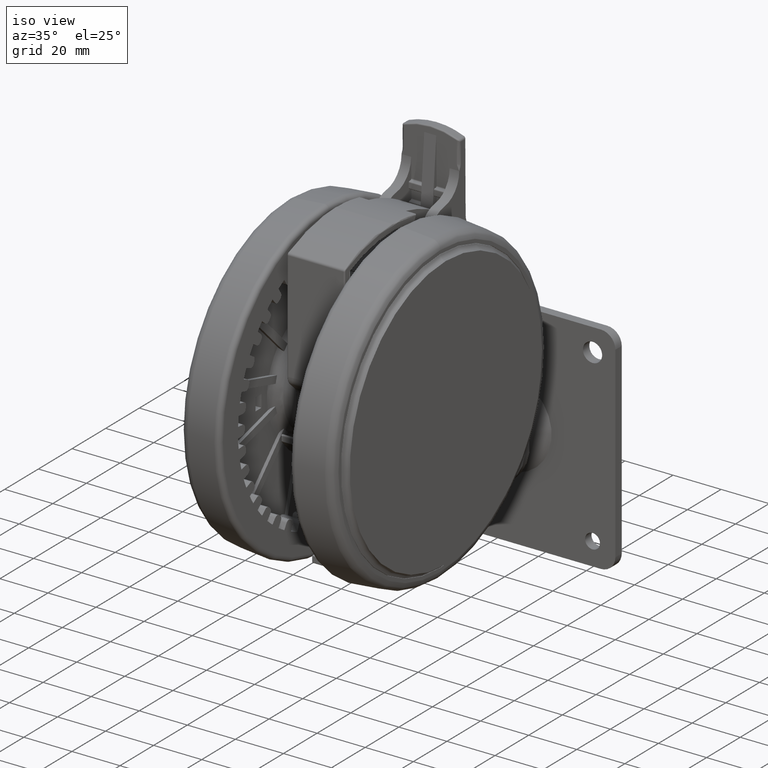
[diagram: clean part render]
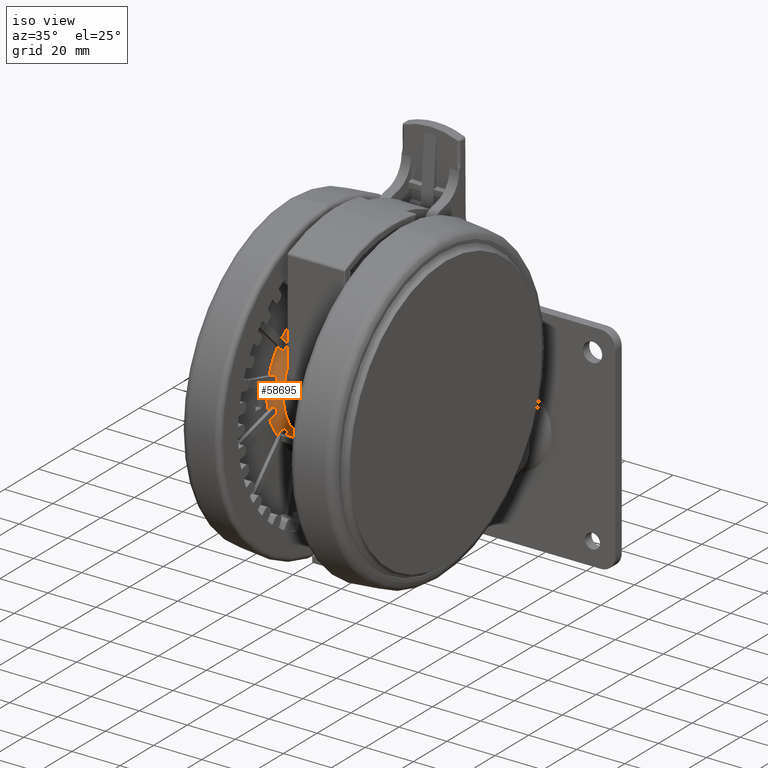
[diagram: same view with one face highlighted and labeled with its STEP entity id]
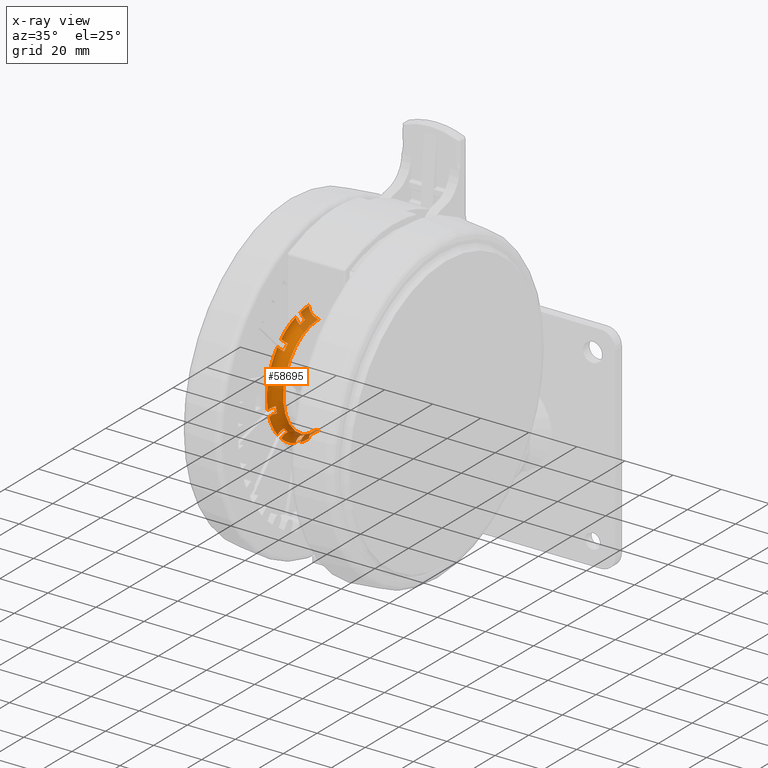
[diagram: x-ray of the same camera — body ghosted, the highlighted face saturated]
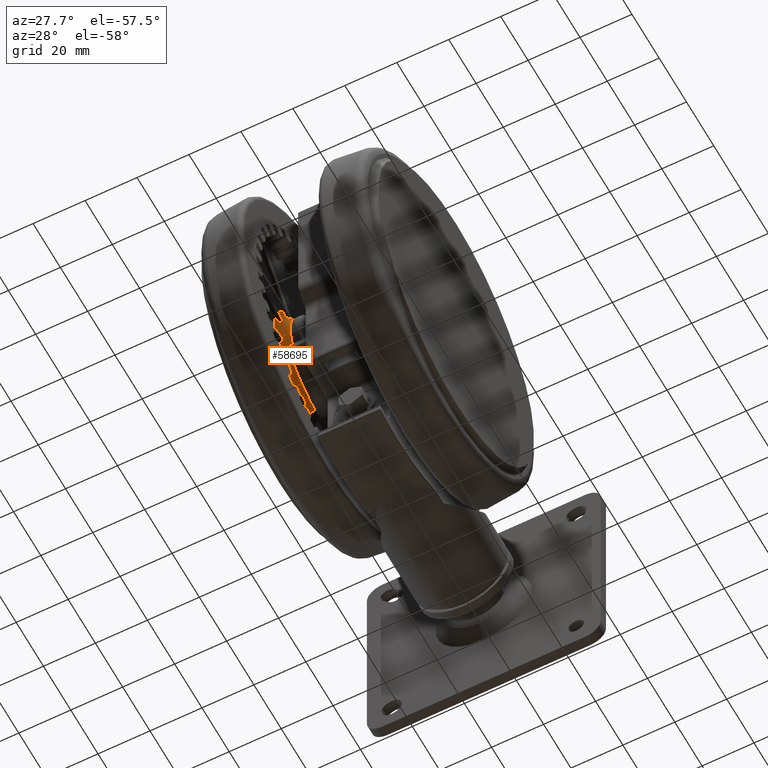
[diagram: same view with one face highlighted and labeled with its STEP entity id]
A machine part, iso view. The second image highlights one B-rep face of the part: STEP entity #58695.
The next image is the same camera in x-ray: the body ghosted, the highlighted face saturated — about 18% of this face is hidden behind the body in this view.
A second angle (auxiliary view) of the same face is appended — the face is thin or edge-on in the first view.
In plain terms, the highlighted toroidal blend (fillet) surface has major radius 25 mm and minor (blend) radius 4 mm.
Its self-contained STEP definition (entity closure, byte-faithful):
#120 = B_SPLINE_CURVE_WITH_KNOTS ( 'NONE', 3,
 ( #19770, #64383, #26182, #70812, #32577, #77153, #39038, #839, #45474, #7242 ),
 .UNSPECIFIED., .F., .F.,
 ( 4, 2, 2, 2, 4 ),
 ( 0.001348916626820415200, 0.002175007833610621100, 0.003001099040400826900, 0.003827190247191032700, 0.004653281453981238400 ),
 .UNSPECIFIED. ) ;
#839 = CARTESIAN_POINT ( 'NONE',  ( 21.24490781291777700, -7.247541083338640900, -55.99182023100745900 ) ) ;
#966 = CARTESIAN_POINT ( 'NONE',  ( 4.936599859708284300, -24.22692523311450700, -56.90000000000009800 ) ) ;
#1042 = VERTEX_POINT ( 'NONE', #54995 ) ;
#1113 = CIRCLE ( 'NONE', #30116, 22.04872908732524900 ) ;
#1247 = CARTESIAN_POINT ( 'NONE',  ( 4.655877800282382000, -23.17925624453165800, -56.67256205820938700 ) ) ;
#1765 = CIRCLE ( 'NONE', #31594, 25.00000000000000000 ) ;
#1800 = CARTESIAN_POINT ( 'NONE',  ( 23.96073927864555100, -4.869417390129179100, -56.87188789844324100 ) ) ;
#2449 = CARTESIAN_POINT ( 'NONE',  ( -24.49326988367322500, -5.007966693733918900, -56.90000000000011200 ) ) ;
#3255 = EDGE_CURVE ( 'NONE', #12454, #78558, #1113, .T. ) ;
#3767 = CARTESIAN_POINT ( 'NONE',  ( -2.775557561562891400E-014, 2.081668171172168500E-014, -56.90000000000011200 ) ) ;
#3981 = CARTESIAN_POINT ( 'NONE',  ( -18.51290027649737300, -16.38875100227156500, -56.90000000000009800 ) ) ;
#4242 = CARTESIAN_POINT ( 'NONE',  ( -16.89682505134646500, -14.77267577712067700, -55.98922615959220600 ) ) ;
#4774 = CARTESIAN_POINT ( 'NONE',  ( -21.24620652695218900, -7.243747230758085500, -55.99182301080955400 ) ) ;
#4777 = CARTESIAN_POINT ( 'NONE',  ( 14.77267577712074100, -16.89682505134636500, -55.98922615959219900 ) ) ;
#5187 = VERTEX_POINT ( 'NONE', #71492 ) ;
#5576 = CIRCLE ( 'NONE', #74271, 4.000000000000000000 ) ;
#6362 = CARTESIAN_POINT ( 'NONE',  ( 7.243747230758004600, -21.24620652695217500, -55.99182301080956100 ) ) ;
#6428 = CARTESIAN_POINT ( 'NONE',  ( 24.99999999999997500, 2.081668171172168500E-014, -52.90000000000010500 ) ) ;
#6575 = CARTESIAN_POINT ( 'NONE',  ( 18.70515170566867300, -16.58666029277502900, -56.90000000000011200 ) ) ;
#6668 = CARTESIAN_POINT ( 'NONE',  ( -16.61666317710112800, -14.49251390287534000, -55.60000000000010800 ) ) ;
#6714 = CIRCLE ( 'NONE', #29982, 22.04872908732524900 ) ;
#6741 = B_SPLINE_CURVE_WITH_KNOTS ( 'NONE', 3,
 ( #46405, #52804, #59191, #20969, #65588, #27345, #71985, #33791, #78353, #40259 ),
 .UNSPECIFIED., .F., .F.,
 ( 4, 2, 2, 2, 4 ),
 ( 0.001348916626820416200, 0.002175007833610625500, 0.003001099040400834300, 0.003827190247191043100, 0.004653281453981252300 ),
 .UNSPECIFIED. ) ;
#7242 = CARTESIAN_POINT ( 'NONE',  ( 20.85921679313977300, -7.144195486061188500, -55.60000000000010800 ) ) ;
#7652 = CARTESIAN_POINT ( 'NONE',  ( 4.461864923654134800, -22.45519033163242600, -56.31206506192830800 ) ) ;
#7784 = CARTESIAN_POINT ( 'NONE',  ( 14.49251390287539300, -16.61666317710102800, -55.60000000000010800 ) ) ;
#7941 = EDGE_CURVE ( 'NONE', #57607, #56604, #73717, .T. ) ;
#7951 = ORIENTED_EDGE ( 'NONE', *, *, #56331, .F. ) ;
#8196 = CARTESIAN_POINT ( 'NONE',  ( 23.17846471525370700, -4.659807552608926400, -56.67256163753975100 ) ) ;
#8836 = ORIENTED_EDGE ( 'NONE', *, *, #36639, .T. ) ;
#9319 = CARTESIAN_POINT ( 'NONE',  ( 21.63593743785232000, -4.246488614326249700, -55.60000000000010800 ) ) ;
#9424 = CIRCLE ( 'NONE', #66125, 25.00000000000000000 ) ;
#10099 = CARTESIAN_POINT ( 'NONE',  ( -15.81034896945307200, -17.92884038234655400, -56.75700211190937200 ) ) ;
#10175 = DIRECTION ( 'NONE',  ( 1.000000000000000000, 0.0000000000000000000, 0.0000000000000000000 ) ) ;
#10667 = CARTESIAN_POINT ( 'NONE',  ( -16.61666317710112800, -14.49251390287534000, -55.60000000000010800 ) ) ;
#10930 = CARTESIAN_POINT ( 'NONE',  ( -23.44723772250660300, -7.833511762122592300, -56.90000000000019000 ) ) ;
#10999 = DIRECTION ( 'NONE',  ( 1.224646799147353200E-016, 1.000000000000000000, -0.0000000000000000000 ) ) ;
#11064 = CARTESIAN_POINT ( 'NONE',  ( -24.49326988367322500, -5.007966693733918900, -56.90000000000011200 ) ) ;
#11200 = CARTESIAN_POINT ( 'NONE',  ( -20.86051576303413000, -7.140401702038098500, -55.60000000000010800 ) ) ;
#11203 = CARTESIAN_POINT ( 'NONE',  ( 14.49251390287539300, -16.61666317710102800, -55.60000000000010800 ) ) ;
#11296 = CARTESIAN_POINT ( 'NONE',  ( 20.85921679313977300, -7.144195486061188500, -55.60000000000010800 ) ) ;
#11363 = AXIS2_PLACEMENT_3D ( 'NONE', #75260, #37136, #81674 ) ;
#11452 = DIRECTION ( 'NONE',  ( -0.0000000000000000000, -0.0000000000000000000, 1.000000000000000000 ) ) ;
#11683 = CARTESIAN_POINT ( 'NONE',  ( -5.011893324651548000, -24.49246670513838000, -56.90000000000011200 ) ) ;
#11851 = DIRECTION ( 'NONE',  ( 1.000000000000000000, 0.0000000000000000000, 0.0000000000000000000 ) ) ;
#12347 = CARTESIAN_POINT ( 'NONE',  ( 5.007966693733831900, -24.49326988367317900, -56.90000000000011200 ) ) ;
#12454 = VERTEX_POINT ( 'NONE', #20389 ) ;
#12464 = CARTESIAN_POINT ( 'NONE',  ( -2.775557561562891400E-014, 2.081668171172168500E-014, -52.90000000000010500 ) ) ;
#12686 = VERTEX_POINT ( 'NONE', #36818 ) ;
#12769 = CARTESIAN_POINT ( 'NONE',  ( 7.140401702038022200, -20.86051576303413000, -55.60000000000010800 ) ) ;
#12816 = DIRECTION ( 'NONE',  ( 0.0000000000000000000, 0.0000000000000000000, -1.000000000000000000 ) ) ;
#13995 = B_SPLINE_CURVE_WITH_KNOTS ( 'NONE', 3,
 ( #2449, #47055, #53452, #15234, #59867, #21643, #66250, #28006, #72624, #34462 ),
 .UNSPECIFIED., .F., .F.,
 ( 4, 2, 2, 2, 4 ),
 ( 0.0005231479266617440400, 0.001349784870189810100, 0.002176421813717876100, 0.003003058757245942500, 0.003829695700774008400 ),
 .UNSPECIFIED. ) ;
#14046 = CARTESIAN_POINT ( 'NONE',  ( 4.291447536817257100, -21.81918398546406800, -55.80601266069986400 ) ) ;
#14058 = CARTESIAN_POINT ( 'NONE',  ( -21.63670938893672600, -4.242553616038633500, -55.60000000000010800 ) ) ;
#14594 = CARTESIAN_POINT ( 'NONE',  ( 22.45439583371094700, -4.465793880535041000, -56.31205643981766700 ) ) ;
#15234 = CARTESIAN_POINT ( 'NONE',  ( -23.43311941485360000, -4.723900231758232600, -56.75716834254034600 ) ) ;
#15387 = EDGE_CURVE ( 'NONE', #5187, #55820, #32400, .T. ) ;
#15594 = CARTESIAN_POINT ( 'NONE',  ( -18.70781059414232700, -16.58366131991653000, -56.90000000000011200 ) ) ;
#16502 = CARTESIAN_POINT ( 'NONE',  ( -15.26706642823438800, -17.38555784112787000, -56.45060962189929700 ) ) ;
#17331 = CARTESIAN_POINT ( 'NONE',  ( 16.38875100227165400, -18.51290027649727000, -56.90000000000009800 ) ) ;
#17598 = VERTEX_POINT ( 'NONE', #79450 ) ;
#17623 = CARTESIAN_POINT ( 'NONE',  ( 18.31427174262375200, -16.19578032973008800, -56.87149998141190100 ) ) ;
#18105 = CARTESIAN_POINT ( 'NONE',  ( -4.940527544913138900, -24.22612598923285500, -56.90000000000012600 ) ) ;
#18342 = VERTEX_POINT ( 'NONE', #11064 ) ;
#18633 = AXIS2_PLACEMENT_3D ( 'NONE', #27091, #71706, #33507 ) ;
#18727 = ORIENTED_EDGE ( 'NONE', *, *, #44095, .F. ) ;
#19076 = DIRECTION ( 'NONE',  ( -0.0000000000000000000, -0.0000000000000000000, -1.000000000000000000 ) ) ;
#19229 = EDGE_CURVE ( 'NONE', #47047, #35057, #32655, .T. ) ;
#19635 = VERTEX_POINT ( 'NONE', #15594 ) ;
#19770 = CARTESIAN_POINT ( 'NONE',  ( 23.71577728787627100, -7.909608563756479200, -56.90000000000011200 ) ) ;
#20133 = ORIENTED_EDGE ( 'NONE', *, *, #81473, .F. ) ;
#20163 = CARTESIAN_POINT ( 'NONE',  ( -2.775557561562891400E-014, 2.081668171172168500E-014, -56.90000000000011200 ) ) ;
#20264 = EDGE_CURVE ( 'NONE', #44571, #40661, #5576, .T. ) ;
#20389 = CARTESIAN_POINT ( 'NONE',  ( -7.144195486061307500, -20.85921679313978000, -55.60000000000010800 ) ) ;
#20460 = DIRECTION ( 'NONE',  ( -0.0000000000000000000, -0.0000000000000000000, 1.000000000000000000 ) ) ;
#20623 = AXIS2_PLACEMENT_3D ( 'NONE', #22348, #66960, #28706 ) ;
#20724 = CARTESIAN_POINT ( 'NONE',  ( 24.49246670513841900, -5.011893324651419200, -56.90000000000011200 ) ) ;
#20743 = CARTESIAN_POINT ( 'NONE',  ( -2.775557561562891400E-014, 2.081668171172168500E-014, -55.60000000000010800 ) ) ;
#20939 = DIRECTION ( 'NONE',  ( 0.0000000000000000000, 0.0000000000000000000, 1.000000000000000000 ) ) ;
#20969 = CARTESIAN_POINT ( 'NONE',  ( -7.626680945777248000, -22.65987704271283900, -56.75813185887105300 ) ) ;
#20996 = CARTESIAN_POINT ( 'NONE',  ( 21.81840954015164200, -4.295381866778564400, -55.80601239959037200 ) ) ;
#21320 = EDGE_CURVE ( 'NONE', #35420, #17598, #52316, .T. ) ;
#21643 = CARTESIAN_POINT ( 'NONE',  ( -22.69143043367994700, -4.525165268217691100, -56.45100011469186500 ) ) ;
#22348 = CARTESIAN_POINT ( 'NONE',  ( -2.775557561562891400E-014, 2.081668171172168500E-014, -56.90000000000011200 ) ) ;
#22901 = CARTESIAN_POINT ( 'NONE',  ( -14.77569341390269700, -16.89418482679617700, -55.98922522866440200 ) ) ;
#23731 = CARTESIAN_POINT ( 'NONE',  ( -23.71704503032022900, -7.905806412363269900, -56.90000000000011200 ) ) ;
#24037 = CARTESIAN_POINT ( 'NONE',  ( 17.74316704099160400, -15.62467562809794000, -56.67255586881644500 ) ) ;
#24156 = EDGE_CURVE ( 'NONE', #57607, #39281, #77859, .T. ) ;
#24373 = CIRCLE ( 'NONE', #30399, 21.00000000000000000 ) ;
#24526 = CARTESIAN_POINT ( 'NONE',  ( -4.727828586080774700, -23.43232266815347100, -56.75716642179951100 ) ) ;
#24999 = CARTESIAN_POINT ( 'NONE',  ( 7.905806412363173100, -23.71704503032022900, -56.90000000000011200 ) ) ;
#25313 = CARTESIAN_POINT ( 'NONE',  ( 7.762487319494344000, -23.18217089403904300, -56.87116406797142100 ) ) ;
#25604 = B_SPLINE_CURVE_WITH_KNOTS ( 'NONE', 3,
 ( #23731, #10930, #30112, #74696, #36551, #81109, #42998, #4774, #49426, #11200 ),
 .UNSPECIFIED., .F., .F.,
 ( 4, 2, 2, 2, 4 ),
 ( 0.001347546084473213400, 0.002173628119568467500, 0.002999710154663721100, 0.003825792189758975200, 0.004651874224854229300 ),
 .UNSPECIFIED. ) ;
#25893 = CARTESIAN_POINT ( 'NONE',  ( 4.242553616038552600, -21.63670938893668000, -55.60000000000010800 ) ) ;
#26182 = CARTESIAN_POINT ( 'NONE',  ( 23.18091811138896600, -7.766293479352327700, -56.87116724136443200 ) ) ;
#26234 = ORIENTED_EDGE ( 'NONE', *, *, #44849, .T. ) ;
#26559 = DIRECTION ( 'NONE',  ( 1.000000000000000000, 0.0000000000000000000, 0.0000000000000000000 ) ) ;
#27091 = CARTESIAN_POINT ( 'NONE',  ( -2.775557561562891400E-014, 2.081668171172168500E-014, -55.60000000000010800 ) ) ;
#27126 = DIRECTION ( 'NONE',  ( -1.000000000000000000, 0.0000000000000000000, 0.0000000000000000000 ) ) ;
#27345 = CARTESIAN_POINT ( 'NONE',  ( -7.426274505814486600, -21.91195002660781200, -56.44998293941953400 ) ) ;
#27491 = EDGE_CURVE ( 'NONE', #56976, #12454, #6741, .T. ) ;
#27883 = AXIS2_PLACEMENT_3D ( 'NONE', #6428, #51067, #12816 ) ;
#28006 = CARTESIAN_POINT ( 'NONE',  ( -22.01955541522622200, -4.345136899608372800, -55.98940024324907200 ) ) ;
#28009 = DIRECTION ( 'NONE',  ( -0.0000000000000000000, -0.0000000000000000000, -1.000000000000000000 ) ) ;
#28270 = ORIENTED_EDGE ( 'NONE', *, *, #35949, .F. ) ;
#28508 = CARTESIAN_POINT ( 'NONE',  ( -2.775557561562891400E-014, 2.081668171172168500E-014, -56.90000000000011200 ) ) ;
#28706 = DIRECTION ( 'NONE',  ( 1.000000000000000000, 0.0000000000000000000, 0.0000000000000000000 ) ) ;
#28922 = AXIS2_PLACEMENT_3D ( 'NONE', #20163, #64770, #26559 ) ;
#28996 = CARTESIAN_POINT ( 'NONE',  ( -16.39175167238482100, -18.51024308527830800, -56.90000000000009800 ) ) ;
#29269 = CARTESIAN_POINT ( 'NONE',  ( -14.49553573581420800, -16.61402714870773100, -55.60000000000010800 ) ) ;
#29569 = CARTESIAN_POINT ( 'NONE',  ( -18.31692739584990200, -16.19277812162410500, -56.87150008029321700 ) ) ;
#29982 = AXIS2_PLACEMENT_3D ( 'NONE', #20743, #65350, #27126 ) ;
#30016 = ORIENTED_EDGE ( 'NONE', *, *, #21320, .F. ) ;
#30112 = CARTESIAN_POINT ( 'NONE',  ( -23.18217089403904300, -7.762487319494431900, -56.87116406797142100 ) ) ;
#30116 = AXIS2_PLACEMENT_3D ( 'NONE', #58645, #20460, #65055 ) ;
#30118 = CARTESIAN_POINT ( 'NONE',  ( 16.19277812162419400, -18.31692739584980600, -56.87150008029324500 ) ) ;
#30140 = CARTESIAN_POINT ( 'NONE',  ( 18.51024308527837500, -16.39175167238470400, -56.90000000000010500 ) ) ;
#30354 = CARTESIAN_POINT ( 'NONE',  ( -2.775557561562891400E-014, 2.081668171172168500E-014, -55.60000000000010800 ) ) ;
#30395 = VERTEX_POINT ( 'NONE', #14058 ) ;
#30399 = AXIS2_PLACEMENT_3D ( 'NONE', #59148, #20939, #65547 ) ;
#30420 = CARTESIAN_POINT ( 'NONE',  ( 17.21231410289082200, -15.09382268999715700, -56.31125119007644700 ) ) ;
#30658 = B_SPLINE_CURVE_WITH_KNOTS ( 'NONE', 3,
 ( #20724, #33527, #1800, #46436, #8196, #52827, #14594, #59208, #20996, #65604 ),
 .UNSPECIFIED., .F., .F.,
 ( 4, 2, 2, 2, 4 ),
 ( 0.0005239861712278758900, 0.001350617455153506200, 0.002177248739079136600, 0.003003880023004766900, 0.003830511306930397300 ),
 .UNSPECIFIED. ) ;
#30885 = CARTESIAN_POINT ( 'NONE',  ( -4.529095117299738700, -22.69063926549825200, -56.45099670177592800 ) ) ;
#30897 = ORIENTED_EDGE ( 'NONE', *, *, #81249, .F. ) ;
#31323 = ORIENTED_EDGE ( 'NONE', *, *, #60585, .T. ) ;
#31351 = B_SPLINE_CURVE_WITH_KNOTS ( 'NONE', 3,
 ( #61934, #17331, #30118, #74699, #36556, #81114, #43005, #4777, #49432, #11203 ),
 .UNSPECIFIED., .F., .F.,
 ( 4, 2, 2, 2, 4 ),
 ( 0.003307883883644838000, 0.004134723832034096000, 0.004961563780423354000, 0.005788403728812614600, 0.006615243677201876000 ),
 .UNSPECIFIED. ) ;
#31358 = DIRECTION ( 'NONE',  ( -0.0000000000000000000, -0.0000000000000000000, -1.000000000000000000 ) ) ;
#31594 = AXIS2_PLACEMENT_3D ( 'NONE', #69608, #31358, #75922 ) ;
#31709 = CARTESIAN_POINT ( 'NONE',  ( 7.905806412363173100, -23.71704503032022900, -56.90000000000011200 ) ) ;
#32022 = EDGE_CURVE ( 'NONE', #19635, #34626, #48424, .T. ) ;
#32400 = CIRCLE ( 'NONE', #78151, 25.00000000000000000 ) ;
#32577 = CARTESIAN_POINT ( 'NONE',  ( 22.40107036529797900, -7.557333905568020400, -56.67236090217881600 ) ) ;
#32624 = ORIENTED_EDGE ( 'NONE', *, *, #38943, .F. ) ;
#32655 = CIRCLE ( 'NONE', #53929, 22.04872908732524900 ) ;
#33507 = DIRECTION ( 'NONE',  ( -1.000000000000000000, 0.0000000000000000000, 0.0000000000000000000 ) ) ;
#33527 = CARTESIAN_POINT ( 'NONE',  ( 24.22612598923289800, -4.940527544913012800, -56.90000000000010500 ) ) ;
#33791 = CARTESIAN_POINT ( 'NONE',  ( -7.247541083338772300, -21.24490781291776600, -55.99182023100748000 ) ) ;
#33834 = ORIENTED_EDGE ( 'NONE', *, *, #3255, .T. ) ;
#34462 = CARTESIAN_POINT ( 'NONE',  ( -21.63670938893672600, -4.242553616038633500, -55.60000000000010800 ) ) ;
#34626 = VERTEX_POINT ( 'NONE', #54436 ) ;
#34964 = EDGE_CURVE ( 'NONE', #5187, #79007, #120, .T. ) ;
#34973 = DIRECTION ( 'NONE',  ( 1.000000000000000000, 0.0000000000000000000, 0.0000000000000000000 ) ) ;
#35057 = VERTEX_POINT ( 'NONE', #39873 ) ;
#35420 = VERTEX_POINT ( 'NONE', #39241 ) ;
#35945 = ORIENTED_EDGE ( 'NONE', *, *, #69180, .T. ) ;
#35949 = EDGE_CURVE ( 'NONE', #17598, #78511, #73275, .T. ) ;
#36011 = CARTESIAN_POINT ( 'NONE',  ( -17.74581723084492800, -15.62166795661912400, -56.67255639888745100 ) ) ;
#36551 = CARTESIAN_POINT ( 'NONE',  ( -22.40234830381208700, -7.553534486203577800, -56.67236030751059400 ) ) ;
#36556 = CARTESIAN_POINT ( 'NONE',  ( 15.62166795661919700, -17.74581723084482100, -56.67255639888743700 ) ) ;
#36639 = EDGE_CURVE ( 'NONE', #30395, #44985, #41478, .T. ) ;
#36720 = CARTESIAN_POINT ( 'NONE',  ( 7.833511762122505200, -23.44723772250659300, -56.90000000000019000 ) ) ;
#36790 = DIRECTION ( 'NONE',  ( -1.000000000000000000, -8.881784197001252300E-015, 0.0000000000000000000 ) ) ;
#36818 = CARTESIAN_POINT ( 'NONE',  ( -16.58666029277512500, -18.70515170566862700, -56.90000000000011200 ) ) ;
#36868 = CARTESIAN_POINT ( 'NONE',  ( 16.74763722004176400, -14.62914580714809900, -55.80606055102646900 ) ) ;
#37136 = DIRECTION ( 'NONE',  ( -0.0000000000000000000, -0.0000000000000000000, 1.000000000000000000 ) ) ;
#37168 = ORIENTED_EDGE ( 'NONE', *, *, #79572, .T. ) ;
#37358 = CARTESIAN_POINT ( 'NONE',  ( -4.349069996922115600, -22.01877636961025800, -55.98939764193031000 ) ) ;
#38169 = CARTESIAN_POINT ( 'NONE',  ( 7.553534486203491700, -22.40234830381208300, -56.67236030751060100 ) ) ;
#38943 = EDGE_CURVE ( 'NONE', #42777, #70639, #70656, .T. ) ;
#39038 = CARTESIAN_POINT ( 'NONE',  ( 21.68067539087941900, -7.364304653941130300, -56.31395356812575400 ) ) ;
#39103 = ORIENTED_EDGE ( 'NONE', *, *, #20264, .T. ) ;
#39241 = CARTESIAN_POINT ( 'NONE',  ( 20.99999999999997500, 2.081668171172168500E-014, -52.90000000000010500 ) ) ;
#39281 = VERTEX_POINT ( 'NONE', #71883 ) ;
#39437 = ORIENTED_EDGE ( 'NONE', *, *, #78459, .T. ) ;
#39442 = CARTESIAN_POINT ( 'NONE',  ( 4.723900231758137600, -23.43311941485354700, -56.75716834254033200 ) ) ;
#39873 = CARTESIAN_POINT ( 'NONE',  ( -14.49553573581420800, -16.61402714870773100, -55.60000000000010800 ) ) ;
#39887 = ORIENTED_EDGE ( 'NONE', *, *, #7941, .T. ) ;
#40090 = B_SPLINE_CURVE_WITH_KNOTS ( 'NONE', 3,
 ( #73588, #28996, #48327, #10099, #54695, #16502, #61105, #22901, #67521, #29269 ),
 .UNSPECIFIED., .F., .F.,
 ( 4, 2, 2, 2, 4 ),
 ( 0.003307861154327459700, 0.004134694003243046800, 0.004961526852158634400, 0.005788359701074222000, 0.006615192549989809500 ),
 .UNSPECIFIED. ) ;
#40259 = CARTESIAN_POINT ( 'NONE',  ( -7.144195486061307500, -20.85921679313978000, -55.60000000000010800 ) ) ;
#40661 = VERTEX_POINT ( 'NONE', #55238 ) ;
#40792 = ORIENTED_EDGE ( 'NONE', *, *, #77312, .F. ) ;
#41478 = CIRCLE ( 'NONE', #11363, 22.04872908732524900 ) ;
#42468 = CARTESIAN_POINT ( 'NONE',  ( -17.21495865952490300, -15.09080938529911500, -56.31125241463323100 ) ) ;
#42777 = VERTEX_POINT ( 'NONE', #24999 ) ;
#42998 = CARTESIAN_POINT ( 'NONE',  ( -21.68195037980073200, -7.360504444235677300, -56.31394363254047200 ) ) ;
#43005 = CARTESIAN_POINT ( 'NONE',  ( 15.09080938529918300, -17.21495865952480000, -56.31125241463323800 ) ) ;
#43773 = CARTESIAN_POINT ( 'NONE',  ( -4.246488614326372300, -21.63593743785232700, -55.60000000000010800 ) ) ;
#44095 = EDGE_CURVE ( 'NONE', #1042, #42777, #1765, .T. ) ;
#44251 = EDGE_CURVE ( 'NONE', #52523, #72471, #6714, .T. ) ;
#44571 = VERTEX_POINT ( 'NONE', #45817 ) ;
#44577 = CARTESIAN_POINT ( 'NONE',  ( 7.360504444235594700, -21.68195037980071800, -56.31394363254047200 ) ) ;
#44849 = EDGE_CURVE ( 'NONE', #79007, #59039, #64458, .T. ) ;
#44985 = VERTEX_POINT ( 'NONE', #56863 ) ;
#45474 = CARTESIAN_POINT ( 'NONE',  ( 21.04157144517128600, -7.193057267809093600, -55.80587724412617200 ) ) ;
#45817 = CARTESIAN_POINT ( 'NONE',  ( -21.00000000000002800, 2.363336934976059700E-014, -52.90000000000010500 ) ) ;
#45867 = CARTESIAN_POINT ( 'NONE',  ( 4.525165268217601300, -22.69143043367990800, -56.45100011469186500 ) ) ;
#46405 = CARTESIAN_POINT ( 'NONE',  ( -7.909608563756608000, -23.71577728787627800, -56.90000000000011200 ) ) ;
#46436 = CARTESIAN_POINT ( 'NONE',  ( 23.43232266815350000, -4.727828586080645000, -56.75716642179953900 ) ) ;
#47047 = VERTEX_POINT ( 'NONE', #6668 ) ;
#47055 = CARTESIAN_POINT ( 'NONE',  ( -24.22692523311454900, -4.936599859708380200, -56.90000000000009100 ) ) ;
#47819 = ORIENTED_EDGE ( 'NONE', *, *, #69213, .F. ) ;
#48327 = CARTESIAN_POINT ( 'NONE',  ( -16.19578032973020900, -18.31427174262368900, -56.87149998141190100 ) ) ;
#48402 = DIRECTION ( 'NONE',  ( -0.0000000000000000000, -0.0000000000000000000, -1.000000000000000000 ) ) ;
#48424 = CIRCLE ( 'NONE', #20623, 25.00000000000000000 ) ;
#48798 = ORIENTED_EDGE ( 'NONE', *, *, #15387, .F. ) ;
#48886 = CARTESIAN_POINT ( 'NONE',  ( -16.75027530206261900, -14.62612602783682700, -55.80606116274533700 ) ) ;
#49231 = CARTESIAN_POINT ( 'NONE',  ( -25.00000000000002800, 2.387829870959006700E-014, -52.90000000000010500 ) ) ;
#49275 = ORIENTED_EDGE ( 'NONE', *, *, #32022, .F. ) ;
#49426 = CARTESIAN_POINT ( 'NONE',  ( -21.04286714949684600, -7.189262608779479500, -55.80587611048770900 ) ) ;
#49432 = CARTESIAN_POINT ( 'NONE',  ( 14.62612602783689100, -16.75027530206250900, -55.80606116274532300 ) ) ;
#49467 = CARTESIAN_POINT ( 'NONE',  ( 18.70515170566867300, -16.58666029277502900, -56.90000000000011200 ) ) ;
#49707 = CARTESIAN_POINT ( 'NONE',  ( -2.775557561562891400E-014, 2.081668171172168500E-014, -55.60000000000010800 ) ) ;
#50017 = ORIENTED_EDGE ( 'NONE', *, *, #24156, .F. ) ;
#50167 = AXIS2_PLACEMENT_3D ( 'NONE', #57260, #19076, #63673 ) ;
#51010 = CARTESIAN_POINT ( 'NONE',  ( 7.189262608779399600, -21.04286714949683200, -55.80587611048772300 ) ) ;
#51067 = DIRECTION ( 'NONE',  ( 0.0000000000000000000, -1.000000000000000000, 0.0000000000000000000 ) ) ;
#51349 = ORIENTED_EDGE ( 'NONE', *, *, #71187, .F. ) ;
#51540 = ORIENTED_EDGE ( 'NONE', *, *, #34964, .T. ) ;
#51729 = CARTESIAN_POINT ( 'NONE',  ( 4.865495382986450700, -23.96155971334303600, -56.87189177170005600 ) ) ;
#52261 = CARTESIAN_POINT ( 'NONE',  ( 4.345136899608283100, -22.01955541522617200, -55.98940024324907200 ) ) ;
#52316 = CIRCLE ( 'NONE', #27883, 3.999999999999996400 ) ;
#52523 = VERTEX_POINT ( 'NONE', #7784 ) ;
#52804 = CARTESIAN_POINT ( 'NONE',  ( -7.837317105712638300, -23.44598189350290000, -56.90000000000012600 ) ) ;
#52827 = CARTESIAN_POINT ( 'NONE',  ( 22.69063926549826600, -4.529095117299609900, -56.45099670177594200 ) ) ;
#53315 = ORIENTED_EDGE ( 'NONE', *, *, #27491, .T. ) ;
#53452 = CARTESIAN_POINT ( 'NONE',  ( -23.96155971334307800, -4.865495382986548400, -56.87189177170006400 ) ) ;
#53929 = AXIS2_PLACEMENT_3D ( 'NONE', #49707, #11452, #56068 ) ;
#53998 = CARTESIAN_POINT ( 'NONE',  ( 24.49246670513841900, -5.011893324651419200, -56.90000000000011200 ) ) ;
#54305 = AXIS2_PLACEMENT_3D ( 'NONE', #12464, #82365, #11851 ) ;
#54436 = CARTESIAN_POINT ( 'NONE',  ( -23.71704503032022900, -7.905806412363269900, -56.90000000000011200 ) ) ;
#54695 = CARTESIAN_POINT ( 'NONE',  ( -15.62467562809805700, -17.74316704099154100, -56.67255586881645300 ) ) ;
#54995 = CARTESIAN_POINT ( 'NONE',  ( 16.58366131991662200, -18.70781059414222700, -56.90000000000011200 ) ) ;
#55238 = CARTESIAN_POINT ( 'NONE',  ( -25.00000000000002800, 2.387829870959006700E-014, -56.90000000000010500 ) ) ;
#55246 = CIRCLE ( 'NONE', #50167, 25.00000000000000000 ) ;
#55597 = DIRECTION ( 'NONE',  ( -1.000000000000000000, 1.224646799147350500E-016, 0.0000000000000000000 ) ) ;
#55820 = VERTEX_POINT ( 'NONE', #6575 ) ;
#55925 = B_SPLINE_CURVE_WITH_KNOTS ( 'NONE', 3,
 ( #11683, #18105, #62708, #24526, #69138, #30885, #75464, #37358, #81894, #43773 ),
 .UNSPECIFIED., .F., .F.,
 ( 4, 2, 2, 2, 4 ),
 ( 0.0005239861712279272800, 0.001350617455153548700, 0.002177248739079169900, 0.003003880023004791200, 0.003830511306930412500 ),
 .UNSPECIFIED. ) ;
#56068 = DIRECTION ( 'NONE',  ( -1.000000000000000000, 0.0000000000000000000, 0.0000000000000000000 ) ) ;
#56331 = EDGE_CURVE ( 'NONE', #12686, #35057, #40090, .T. ) ;
#56604 = VERTEX_POINT ( 'NONE', #25893 ) ;
#56863 = CARTESIAN_POINT ( 'NONE',  ( -20.86051576303413000, -7.140401702038098500, -55.60000000000010800 ) ) ;
#56976 = VERTEX_POINT ( 'NONE', #68228 ) ;
#57260 = CARTESIAN_POINT ( 'NONE',  ( -2.775557561562891400E-014, 2.081668171172168500E-014, -56.90000000000011200 ) ) ;
#57607 = VERTEX_POINT ( 'NONE', #12347 ) ;
#58637 = CARTESIAN_POINT ( 'NONE',  ( 4.242553616038552600, -21.63670938893668000, -55.60000000000010800 ) ) ;
#58645 = CARTESIAN_POINT ( 'NONE',  ( -2.775557561562891400E-014, 2.081668171172168500E-014, -55.60000000000010800 ) ) ;
#58695 = ADVANCED_FACE ( 'NONE', ( #67832 ), #82719, .F. ) ;
#59039 = VERTEX_POINT ( 'NONE', #9319 ) ;
#59148 = CARTESIAN_POINT ( 'NONE',  ( -2.775557561562891400E-014, 2.081668171172168500E-014, -52.90000000000010500 ) ) ;
#59191 = CARTESIAN_POINT ( 'NONE',  ( -7.766293479352465400, -23.18091811138896600, -56.87116724136443900 ) ) ;
#59208 = CARTESIAN_POINT ( 'NONE',  ( 22.01877636961026500, -4.349069996921989500, -55.98939764193031700 ) ) ;
#59398 = ORIENTED_EDGE ( 'NONE', *, *, #19229, .T. ) ;
#59867 = CARTESIAN_POINT ( 'NONE',  ( -23.17925624453170000, -4.655877800282475200, -56.67256205820941500 ) ) ;
#60124 = EDGE_CURVE ( 'NONE', #18342, #40661, #9424, .T. ) ;
#60426 = EDGE_CURVE ( 'NONE', #56976, #12686, #55246, .T. ) ;
#60585 = EDGE_CURVE ( 'NONE', #56604, #70639, #77089, .T. ) ;
#61105 = CARTESIAN_POINT ( 'NONE',  ( -15.09382268999728200, -17.21231410289076900, -56.31125119007645500 ) ) ;
#61395 = CARTESIAN_POINT ( 'NONE',  ( -18.70781059414232700, -16.58366131991653000, -56.90000000000011200 ) ) ;
#61934 = CARTESIAN_POINT ( 'NONE',  ( 16.58366131991662200, -18.70781059414222700, -56.90000000000011200 ) ) ;
#62227 = CARTESIAN_POINT ( 'NONE',  ( 17.92884038234662100, -15.81034896945295500, -56.75700211190935800 ) ) ;
#62708 = CARTESIAN_POINT ( 'NONE',  ( -4.869417390129305200, -23.96073927864551600, -56.87188789844324100 ) ) ;
#63673 = DIRECTION ( 'NONE',  ( 1.000000000000000000, -8.881784197001252300E-016, 0.0000000000000000000 ) ) ;
#64383 = CARTESIAN_POINT ( 'NONE',  ( 23.44598189350289300, -7.837317105712494400, -56.90000000000010500 ) ) ;
#64458 = CIRCLE ( 'NONE', #73825, 22.04872908732524900 ) ;
#64770 = DIRECTION ( 'NONE',  ( -0.0000000000000000000, -0.0000000000000000000, -1.000000000000000000 ) ) ;
#65055 = DIRECTION ( 'NONE',  ( -1.000000000000000000, 0.0000000000000000000, 0.0000000000000000000 ) ) ;
#65350 = DIRECTION ( 'NONE',  ( -0.0000000000000000000, -0.0000000000000000000, 1.000000000000000000 ) ) ;
#65547 = DIRECTION ( 'NONE',  ( 1.000000000000000000, 0.0000000000000000000, 0.0000000000000000000 ) ) ;
#65588 = CARTESIAN_POINT ( 'NONE',  ( -7.557333905568154500, -22.40107036529797600, -56.67236090217883800 ) ) ;
#65604 = CARTESIAN_POINT ( 'NONE',  ( 21.63593743785232000, -4.246488614326249700, -55.60000000000010800 ) ) ;
#66125 = AXIS2_PLACEMENT_3D ( 'NONE', #66251, #28009, #72626 ) ;
#66250 = CARTESIAN_POINT ( 'NONE',  ( -22.45519033163247600, -4.461864923654225400, -56.31206506192830800 ) ) ;
#66251 = CARTESIAN_POINT ( 'NONE',  ( -2.775557561562891400E-014, 2.081668171172168500E-014, -56.90000000000011200 ) ) ;
#66464 = CARTESIAN_POINT ( 'NONE',  ( 7.140401702038022200, -20.86051576303413000, -55.60000000000010800 ) ) ;
#66496 = CARTESIAN_POINT ( 'NONE',  ( 16.61402714870777300, -14.49553573581410000, -55.60000000000010800 ) ) ;
#66960 = DIRECTION ( 'NONE',  ( -0.0000000000000000000, -0.0000000000000000000, -1.000000000000000000 ) ) ;
#67521 = CARTESIAN_POINT ( 'NONE',  ( -14.62914580714822000, -16.74763722004171400, -55.80606055102648400 ) ) ;
#67832 = FACE_OUTER_BOUND ( 'NONE', #74726, .T. ) ;
#68228 = CARTESIAN_POINT ( 'NONE',  ( -7.909608563756608000, -23.71577728787627800, -56.90000000000011200 ) ) ;
#68653 = CARTESIAN_POINT ( 'NONE',  ( 17.38555784112792700, -15.26706642823427100, -56.45060962189933200 ) ) ;
#68905 = ORIENTED_EDGE ( 'NONE', *, *, #60124, .F. ) ;
#69138 = CARTESIAN_POINT ( 'NONE',  ( -4.659807552609057900, -23.17846471525368900, -56.67256163753973700 ) ) ;
#69180 = EDGE_CURVE ( 'NONE', #19635, #47047, #78718, .T. ) ;
#69213 = EDGE_CURVE ( 'NONE', #34626, #44985, #25604, .T. ) ;
#69608 = CARTESIAN_POINT ( 'NONE',  ( -2.775557561562891400E-014, 2.081668171172168500E-014, -56.90000000000011200 ) ) ;
#70639 = VERTEX_POINT ( 'NONE', #66464 ) ;
#70656 = B_SPLINE_CURVE_WITH_KNOTS ( 'NONE', 3,
 ( #31709, #36720, #25313, #76269, #38169, #82693, #44577, #6362, #51010, #12769 ),
 .UNSPECIFIED., .F., .F.,
 ( 4, 2, 2, 2, 4 ),
 ( 0.001347546084473165000, 0.002173628119568418900, 0.002999710154663673400, 0.003825792189758927100, 0.004651874224854181600 ),
 .UNSPECIFIED. ) ;
#70812 = CARTESIAN_POINT ( 'NONE',  ( 22.65987704271283900, -7.626680945777113000, -56.75813185887105300 ) ) ;
#70920 = ORIENTED_EDGE ( 'NONE', *, *, #60426, .F. ) ;
#71187 = EDGE_CURVE ( 'NONE', #55820, #72471, #76151, .T. ) ;
#71492 = CARTESIAN_POINT ( 'NONE',  ( 23.71577728787627100, -7.909608563756479200, -56.90000000000011200 ) ) ;
#71706 = DIRECTION ( 'NONE',  ( -0.0000000000000000000, -0.0000000000000000000, 1.000000000000000000 ) ) ;
#71883 = CARTESIAN_POINT ( 'NONE',  ( -5.011893324651548000, -24.49246670513838000, -56.90000000000011200 ) ) ;
#71985 = CARTESIAN_POINT ( 'NONE',  ( -7.364304653941260000, -21.68067539087941500, -56.31395356812576800 ) ) ;
#72471 = VERTEX_POINT ( 'NONE', #66496 ) ;
#72624 = CARTESIAN_POINT ( 'NONE',  ( -21.81918398546410000, -4.291447536817346800, -55.80601266069987100 ) ) ;
#72626 = DIRECTION ( 'NONE',  ( 1.000000000000000000, 7.105427357601001900E-015, 0.0000000000000000000 ) ) ;
#73107 = DIRECTION ( 'NONE',  ( -0.0000000000000000000, -0.0000000000000000000, -1.000000000000000000 ) ) ;
#73275 = CIRCLE ( 'NONE', #28922, 25.00000000000000000 ) ;
#73588 = CARTESIAN_POINT ( 'NONE',  ( -16.58666029277512500, -18.70515170566862700, -56.90000000000011200 ) ) ;
#73717 = B_SPLINE_CURVE_WITH_KNOTS ( 'NONE', 3,
 ( #77550, #966, #51729, #39442, #1247, #45867, #7652, #52261, #14046, #58637 ),
 .UNSPECIFIED., .F., .F.,
 ( 4, 2, 2, 2, 4 ),
 ( 0.0005231479266617361300, 0.001349784870189802100, 0.002176421813717867800, 0.003003058757245933800, 0.003829695700773999700 ),
 .UNSPECIFIED. ) ;
#73825 = AXIS2_PLACEMENT_3D ( 'NONE', #30354, #74932, #36790 ) ;
#74159 = CARTESIAN_POINT ( 'NONE',  ( -17.93149239197763500, -15.80734311775183100, -56.75700246402653400 ) ) ;
#74271 = AXIS2_PLACEMENT_3D ( 'NONE', #49231, #10999, #55597 ) ;
#74696 = CARTESIAN_POINT ( 'NONE',  ( -22.66114299445705900, -7.622878314567360600, -56.75812795924362300 ) ) ;
#74699 = CARTESIAN_POINT ( 'NONE',  ( 15.80734311775191400, -17.93149239197753500, -56.75700246402656300 ) ) ;
#74726 = EDGE_LOOP ( 'NONE', ( #30897, #39103, #68905, #39437, #8836, #47819, #49275, #35945, #59398, #7951, #70920, #53315, #33834, #20133, #50017, #39887, #31323, #32624, #18727, #37168, #75859, #51349, #48798, #51540, #26234, #40792, #28270, #30016 ) ) ;
#74932 = DIRECTION ( 'NONE',  ( -0.0000000000000000000, -0.0000000000000000000, 1.000000000000000000 ) ) ;
#74998 = CARTESIAN_POINT ( 'NONE',  ( 16.89418482679623100, -14.77569341390257000, -55.98922522866437400 ) ) ;
#75260 = CARTESIAN_POINT ( 'NONE',  ( -2.775557561562891400E-014, 2.081668171172168500E-014, -55.60000000000010800 ) ) ;
#75464 = CARTESIAN_POINT ( 'NONE',  ( -4.465793880535168900, -22.45439583371092600, -56.31205643981766000 ) ) ;
#75859 = ORIENTED_EDGE ( 'NONE', *, *, #44251, .T. ) ;
#75922 = DIRECTION ( 'NONE',  ( 1.000000000000000000, 8.881784197001252300E-016, 0.0000000000000000000 ) ) ;
#76151 = B_SPLINE_CURVE_WITH_KNOTS ( 'NONE', 3,
 ( #49467, #30140, #17623, #62227, #24037, #68653, #30420, #74998, #36868, #81417 ),
 .UNSPECIFIED., .F., .F.,
 ( 4, 2, 2, 2, 4 ),
 ( 0.003307861154327458800, 0.004134694003243050300, 0.004961526852158642200, 0.005788359701074230700, 0.006615192549989819100 ),
 .UNSPECIFIED. ) ;
#76269 = CARTESIAN_POINT ( 'NONE',  ( 7.622878314567271800, -22.66114299445705900, -56.75812795924360200 ) ) ;
#77089 = CIRCLE ( 'NONE', #18633, 22.04872908732524900 ) ;
#77153 = CARTESIAN_POINT ( 'NONE',  ( 21.91195002660781200, -7.426274505814356000, -56.44998293941952000 ) ) ;
#77312 = EDGE_CURVE ( 'NONE', #78511, #59039, #30658, .T. ) ;
#77550 = CARTESIAN_POINT ( 'NONE',  ( 5.007966693733831900, -24.49326988367317900, -56.90000000000011200 ) ) ;
#77859 = CIRCLE ( 'NONE', #81462, 25.00000000000000000 ) ;
#78151 = AXIS2_PLACEMENT_3D ( 'NONE', #28508, #73107, #34973 ) ;
#78353 = CARTESIAN_POINT ( 'NONE',  ( -7.193057267809220600, -21.04157144517128200, -55.80587724412619400 ) ) ;
#78459 = EDGE_CURVE ( 'NONE', #18342, #30395, #13995, .T. ) ;
#78511 = VERTEX_POINT ( 'NONE', #53998 ) ;
#78558 = VERTEX_POINT ( 'NONE', #79847 ) ;
#78718 = B_SPLINE_CURVE_WITH_KNOTS ( 'NONE', 3,
 ( #61395, #3981, #29569, #74159, #36011, #80573, #42468, #4242, #48886, #10667 ),
 .UNSPECIFIED., .F., .F.,
 ( 4, 2, 2, 2, 4 ),
 ( 0.003307883883644897000, 0.004134723832034151500, 0.004961563780423405200, 0.005788403728812658800, 0.006615243677201913300 ),
 .UNSPECIFIED. ) ;
#79007 = VERTEX_POINT ( 'NONE', #11296 ) ;
#79450 = CARTESIAN_POINT ( 'NONE',  ( 24.99999999999997500, 2.081668171172168500E-014, -56.90000000000010500 ) ) ;
#79572 = EDGE_CURVE ( 'NONE', #1042, #52523, #31351, .T. ) ;
#79847 = CARTESIAN_POINT ( 'NONE',  ( -4.246488614326372300, -21.63593743785232700, -55.60000000000010800 ) ) ;
#80573 = CARTESIAN_POINT ( 'NONE',  ( -17.38820439119393100, -15.26405511696813600, -56.45061062413128600 ) ) ;
#81109 = CARTESIAN_POINT ( 'NONE',  ( -21.91321975186552600, -7.422472885714491000, -56.44997446335595000 ) ) ;
#81114 = CARTESIAN_POINT ( 'NONE',  ( 15.26405511696820700, -17.38820439119382800, -56.45061062413127900 ) ) ;
#81249 = EDGE_CURVE ( 'NONE', #44571, #35420, #24373, .T. ) ;
#81417 = CARTESIAN_POINT ( 'NONE',  ( 16.61402714870777300, -14.49553573581410000, -55.60000000000010800 ) ) ;
#81462 = AXIS2_PLACEMENT_3D ( 'NONE', #3767, #48402, #10175 ) ;
#81473 = EDGE_CURVE ( 'NONE', #39281, #78558, #55925, .T. ) ;
#81674 = DIRECTION ( 'NONE',  ( -1.000000000000000000, 0.0000000000000000000, 0.0000000000000000000 ) ) ;
#81894 = CARTESIAN_POINT ( 'NONE',  ( -4.295381866778693200, -21.81840954015163800, -55.80601239959037200 ) ) ;
#82365 = DIRECTION ( 'NONE',  ( 0.0000000000000000000, 0.0000000000000000000, 1.000000000000000000 ) ) ;
#82693 = CARTESIAN_POINT ( 'NONE',  ( 7.422472885714406700, -21.91321975186551500, -56.44997446335595000 ) ) ;
#82719 = TOROIDAL_SURFACE ( 'NONE', #54305, 25.00000000000000000, 4.000000000000000000 ) ;